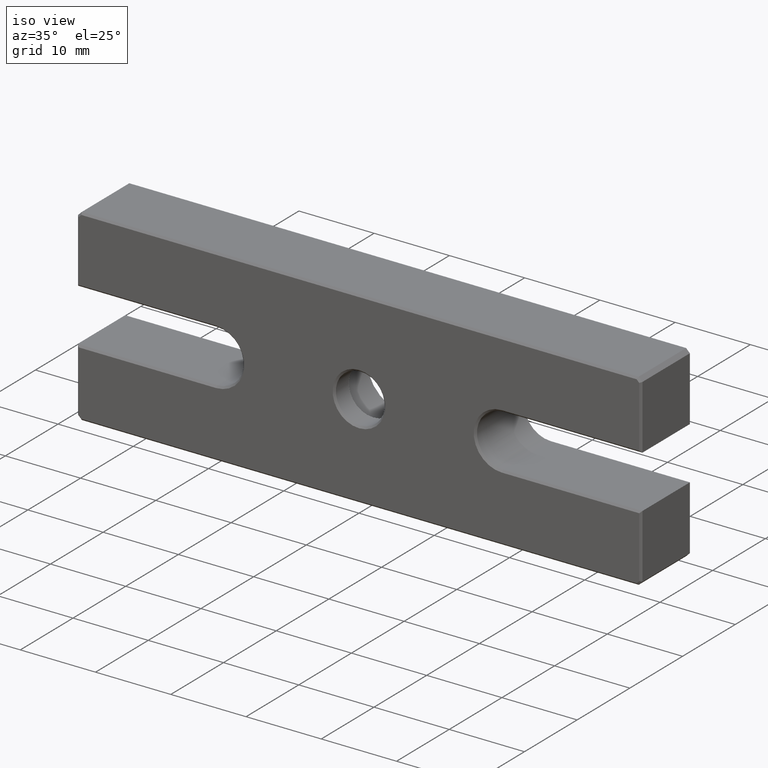
[diagram: clean part render]
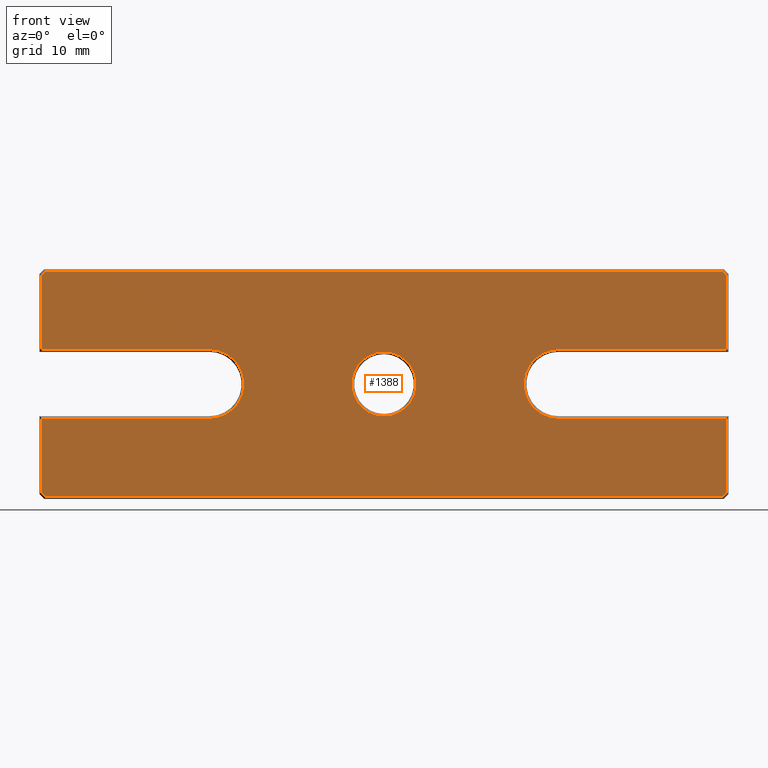
[diagram: tour spotlight — one face highlighted and labeled with its STEP entity id]
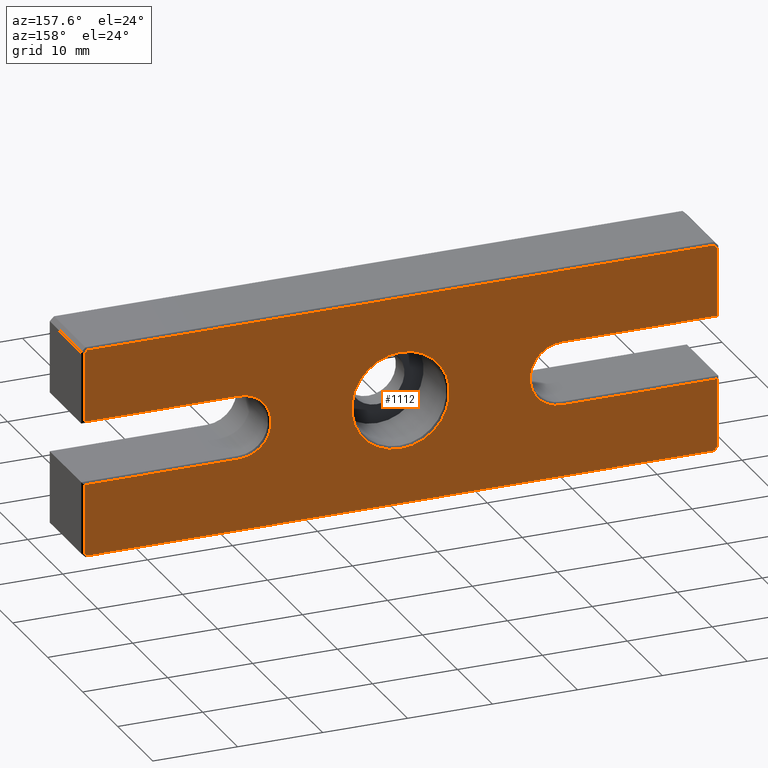
[diagram: tour spotlight — one face highlighted and labeled with its STEP entity id]
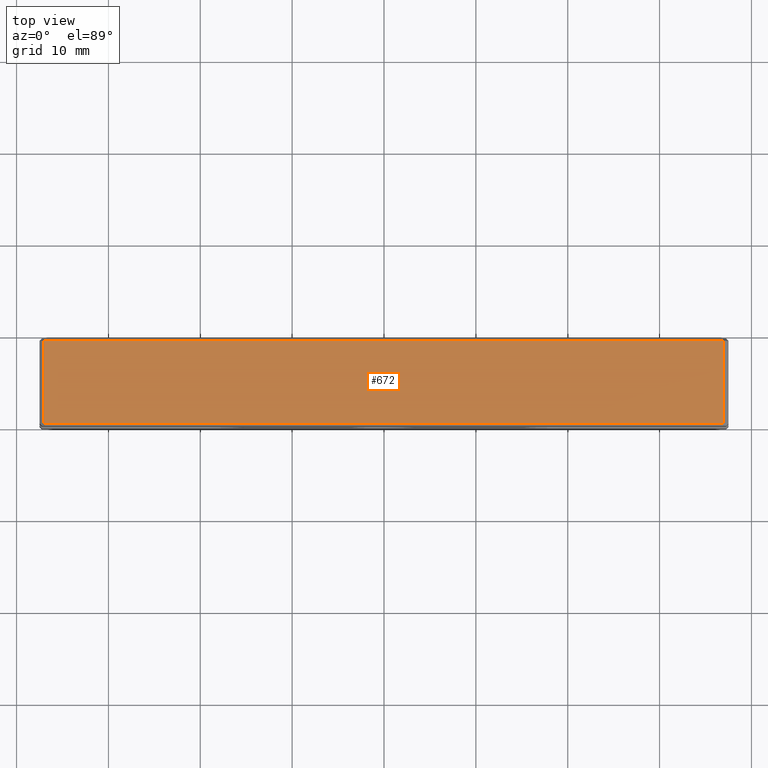
[diagram: tour spotlight — one face highlighted and labeled with its STEP entity id]
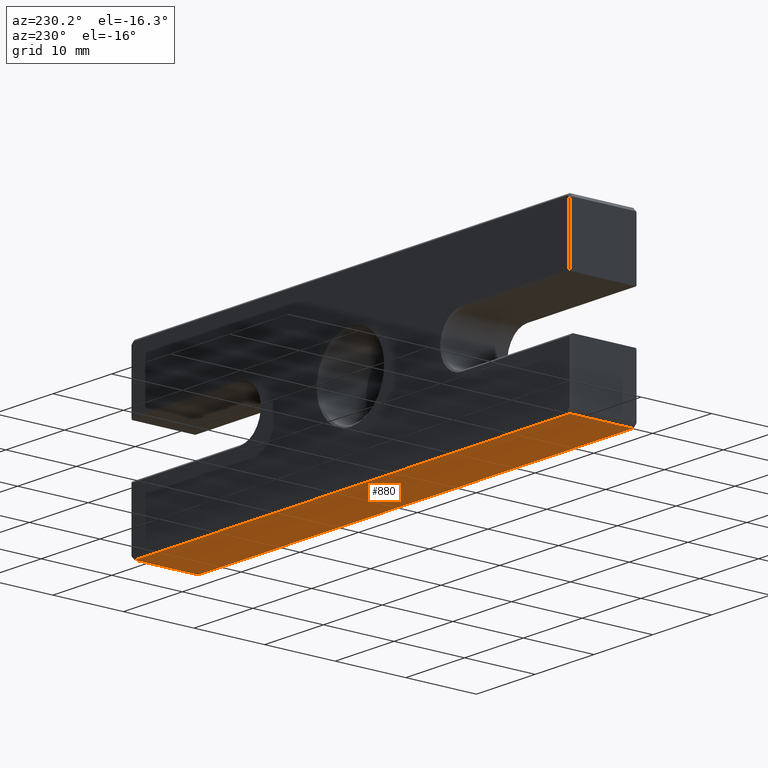
[diagram: tour spotlight — one face highlighted and labeled with its STEP entity id]
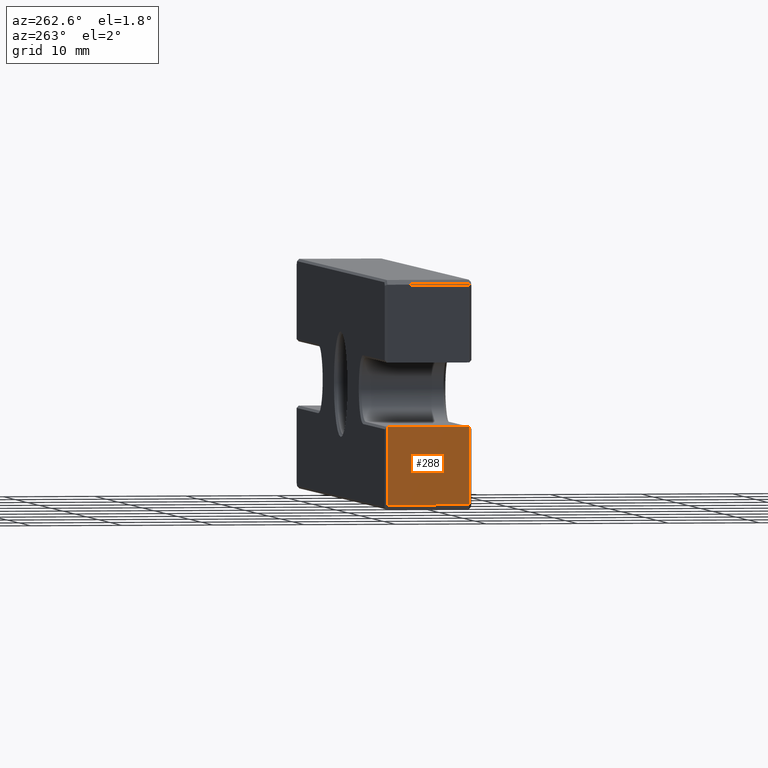
[diagram: tour spotlight — one face highlighted and labeled with its STEP entity id]
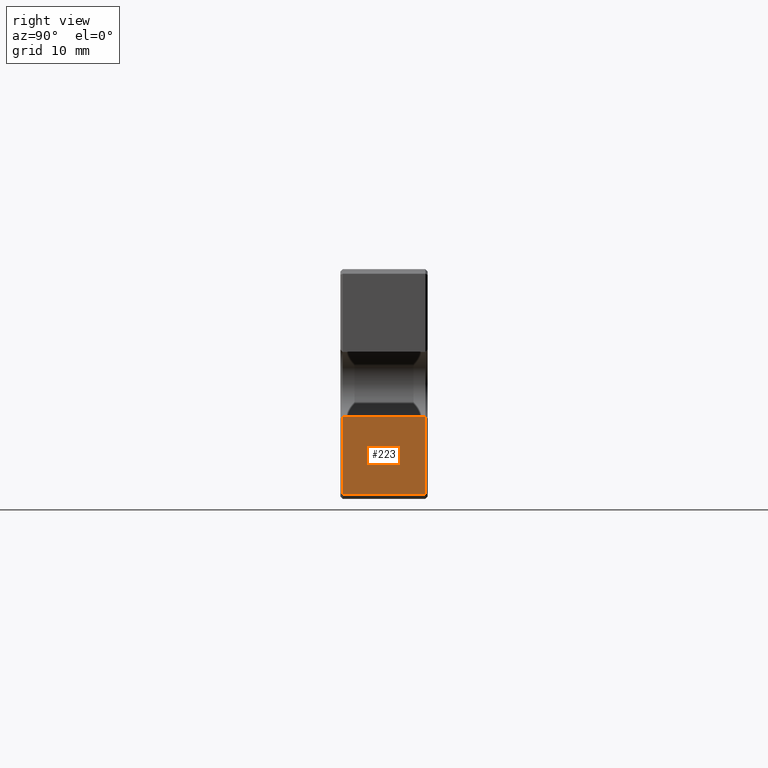
[diagram: tour spotlight — one face highlighted and labeled with its STEP entity id]
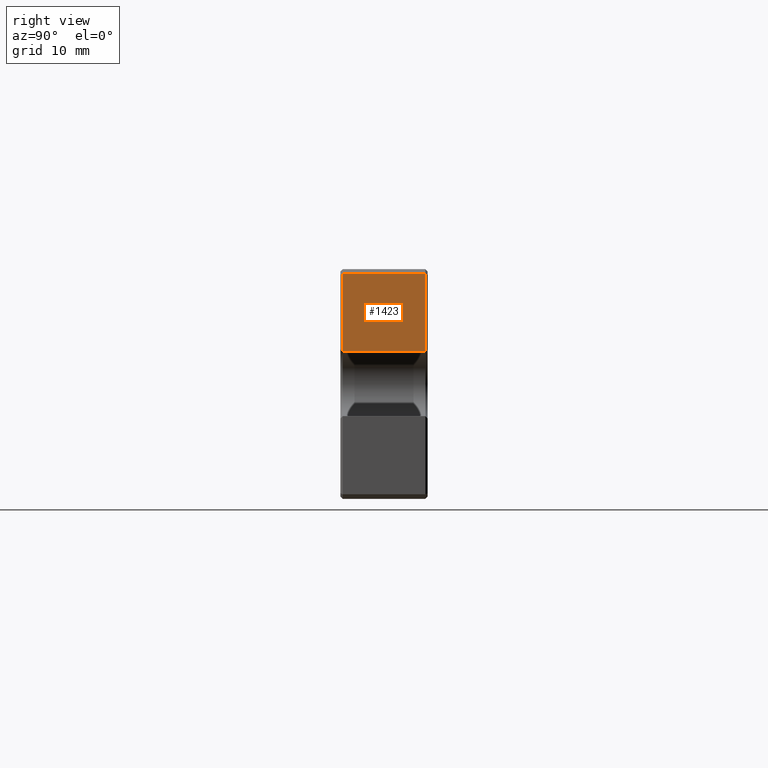
[diagram: tour spotlight — one face highlighted and labeled with its STEP entity id]
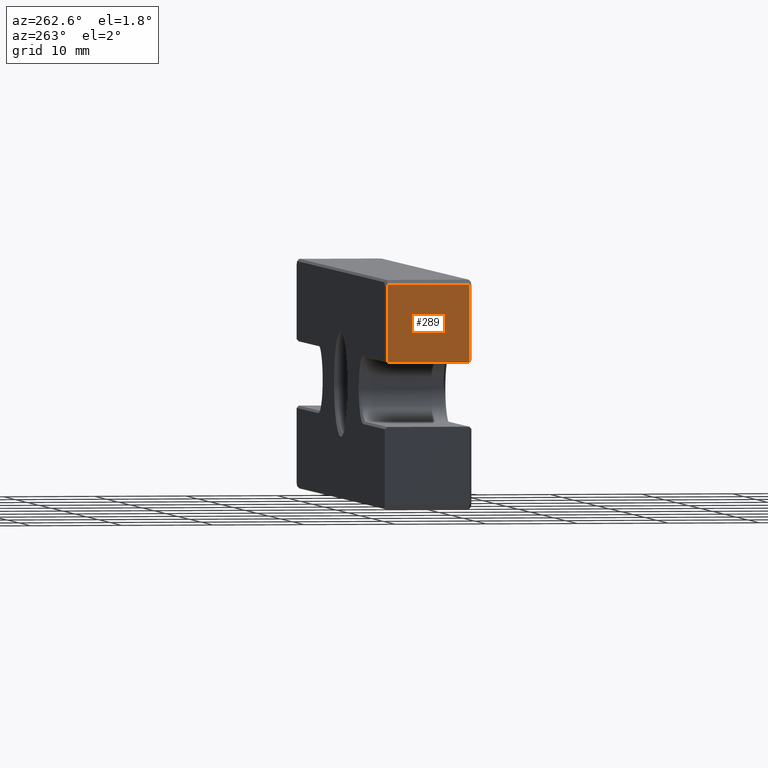
[diagram: tour spotlight — one face highlighted and labeled with its STEP entity id]
A machine part: a face-by-face anatomy tour. The part has 55 B-rep faces; the first image is the clean iso view, then the 8 largest visible faces are spotlighted one at a time (largest first), each with its STEP entity span.

Face 1 — front view, entity #1388. In plain terms, the highlighted planar face has unit normal (0, 1, -0).
Definition (entity closure, byte-faithful):
#18 = VERTEX_POINT ( 'NONE', #845 ) ;
#21 = PLANE ( 'NONE',  #238 ) ;
#34 = DIRECTION ( 'NONE',  ( 0.000000000000000000, 0.000000000000000000, 1.000000000000000000 ) ) ;
#48 = EDGE_LOOP ( 'NONE', ( #95 ) ) ;
#56 = VECTOR ( 'NONE', #1059, 1000.000000000000000 ) ;
#71 = EDGE_CURVE ( 'NONE', #669, #854, #1055, .T. ) ;
#79 = CARTESIAN_POINT ( 'NONE',  ( 19.00000000000000355, 0.000000000000000000, 3.750000000000000000 ) ) ;
#84 = VERTEX_POINT ( 'NONE', #699 ) ;
#86 = VERTEX_POINT ( 'NONE', #371 ) ;
#90 = VECTOR ( 'NONE', #919, 1000.000000000000000 ) ;
#95 = ORIENTED_EDGE ( 'NONE', *, *, #1502, .T. ) ;
#115 = DIRECTION ( 'NONE',  ( -2.775557561562891351E-16, 0.000000000000000000, 1.000000000000000000 ) ) ;
#126 = DIRECTION ( 'NONE',  ( 0.000000000000000000, 0.000000000000000000, 1.000000000000000000 ) ) ;
#135 = FACE_BOUND ( 'NONE', #48, .T. ) ;
#142 = CARTESIAN_POINT ( 'NONE',  ( 4.633870404759981403E-17, 0.000000000000000000, 3.749999999999988454 ) ) ;
#143 = LINE ( 'NONE', #1187, #412 ) ;
#161 = VERTEX_POINT ( 'NONE', #1459 ) ;
#162 = DIRECTION ( 'NONE',  ( 0.000000000000000000, 1.000000000000000000, -0.000000000000000000 ) ) ;
#172 = EDGE_CURVE ( 'NONE', #1295, #161, #520, .T. ) ;
#175 = VERTEX_POINT ( 'NONE', #1468 ) ;
#176 = VERTEX_POINT ( 'NONE', #385 ) ;
#184 = ORIENTED_EDGE ( 'NONE', *, *, #948, .T. ) ;
#216 = ORIENTED_EDGE ( 'NONE', *, *, #1133, .T. ) ;
#229 = CARTESIAN_POINT ( 'NONE',  ( 37.24999999999997158, 0.000000000000000000, 1.033895191682176239E-14 ) ) ;
#238 = AXIS2_PLACEMENT_3D ( 'NONE', #494, #963, #1429 ) ;
#240 = LINE ( 'NONE', #350, #802 ) ;
#256 = ORIENTED_EDGE ( 'NONE', *, *, #71, .T. ) ;
#286 = VECTOR ( 'NONE', #1248, 1000.000000000000000 ) ;
#292 = CARTESIAN_POINT ( 'NONE',  ( 37.32322330470335459, 0.000000000000000000, -11.82322330470334570 ) ) ;
#305 = VECTOR ( 'NONE', #856, 1000.000000000000114 ) ;
#342 = CARTESIAN_POINT ( 'NONE',  ( -37.24999999999997158, 0.000000000000000000, -11.89644660940673226 ) ) ;
#350 = CARTESIAN_POINT ( 'NONE',  ( 37.24999999999997158, 0.000000000000000000, 1.033895191682176239E-14 ) ) ;
#367 = VERTEX_POINT ( 'NONE', #1021 ) ;
#371 = CARTESIAN_POINT ( 'NONE',  ( -36.89644660940670917, 0.000000000000000000, -12.24999999999998757 ) ) ;
#378 = CARTESIAN_POINT ( 'NONE',  ( 5.510992715841790114E-17, 0.000000000000000000, -3.750000000000001332 ) ) ;
#385 = CARTESIAN_POINT ( 'NONE',  ( 37.24999999999997158, 0.000000000000000000, -3.750000000000000444 ) ) ;
#402 = DIRECTION ( 'NONE',  ( -2.775557561562891351E-16, 0.000000000000000000, -1.000000000000000000 ) ) ;
#411 = EDGE_CURVE ( 'NONE', #86, #367, #575, .T. ) ;
#412 = VECTOR ( 'NONE', #470, 1000.000000000000114 ) ;
#414 = EDGE_CURVE ( 'NONE', #949, #176, #1054, .T. ) ;
#417 = DIRECTION ( 'NONE',  ( 0.7071067811865524577, 0.000000000000000000, 0.7071067811865426878 ) ) ;
#433 = EDGE_CURVE ( 'NONE', #18, #1295, #462, .T. ) ;
#442 = LINE ( 'NONE', #677, #286 ) ;
#443 = ORIENTED_EDGE ( 'NONE', *, *, #1060, .T. ) ;
#448 = LINE ( 'NONE', #457, #90 ) ;
#457 = CARTESIAN_POINT ( 'NONE',  ( 0.000000000000000000, 0.000000000000000000, 12.24999999999998401 ) ) ;
#462 = LINE ( 'NONE', #1512, #1408 ) ;
#470 = DIRECTION ( 'NONE',  ( -0.7071067811865474617, 0.000000000000000000, -0.7071067811865474617 ) ) ;
#481 = ORIENTED_EDGE ( 'NONE', *, *, #1319, .T. ) ;
#487 = VECTOR ( 'NONE', #402, 1000.000000000000000 ) ;
#491 = ORIENTED_EDGE ( 'NONE', *, *, #411, .T. ) ;
#494 = CARTESIAN_POINT ( 'NONE',  ( 0.000000000000000000, 0.000000000000000000, 0.000000000000000000 ) ) ;
#502 = CIRCLE ( 'NONE', #1332, 3.750000000000000444 ) ;
#504 = EDGE_CURVE ( 'NONE', #1107, #756, #502, .T. ) ;
#520 = LINE ( 'NONE', #142, #577 ) ;
#531 = CARTESIAN_POINT ( 'NONE',  ( -37.24999999999997158, 0.000000000000000000, 1.033895191682176239E-14 ) ) ;
#533 = ORIENTED_EDGE ( 'NONE', *, *, #414, .T. ) ;
#556 = VECTOR ( 'NONE', #574, 999.9999999999998863 ) ;
#574 = DIRECTION ( 'NONE',  ( -0.7071067811865425767, 0.000000000000000000, 0.7071067811865525687 ) ) ;
#575 = LINE ( 'NONE', #1391, #56 ) ;
#577 = VECTOR ( 'NONE', #742, 1000.000000000000000 ) ;
#580 = CIRCLE ( 'NONE', #899, 3.500000000000010214 ) ;
#581 = ORIENTED_EDGE ( 'NONE', *, *, #433, .T. ) ;
#588 = EDGE_CURVE ( 'NONE', #1130, #86, #850, .T. ) ;
#593 = CARTESIAN_POINT ( 'NONE',  ( -37.24999999999997158, 0.000000000000000000, 3.749999999999989342 ) ) ;
#595 = VERTEX_POINT ( 'NONE', #617 ) ;
#606 = FACE_OUTER_BOUND ( 'NONE', #1393, .T. ) ;
#617 = CARTESIAN_POINT ( 'NONE',  ( 37.24999999999997158, 0.000000000000000000, 3.750000000000000000 ) ) ;
#619 = CARTESIAN_POINT ( 'NONE',  ( 37.24999999999997158, 0.000000000000000000, 11.89644660940671983 ) ) ;
#622 = VECTOR ( 'NONE', #836, 1000.000000000000000 ) ;
#634 = CARTESIAN_POINT ( 'NONE',  ( -36.82322330470334748, 0.000000000000000000, -12.32322330470335459 ) ) ;
#669 = VERTEX_POINT ( 'NONE', #1086 ) ;
#676 = ORIENTED_EDGE ( 'NONE', *, *, #1070, .T. ) ;
#677 = CARTESIAN_POINT ( 'NONE',  ( -5.510992715841787649E-17, 0.000000000000000000, 3.749999999999999556 ) ) ;
#689 = CARTESIAN_POINT ( 'NONE',  ( -37.24999999999997158, 0.000000000000000000, -3.749999999999989786 ) ) ;
#699 = CARTESIAN_POINT ( 'NONE',  ( -36.89644660940670207, 0.000000000000000000, 12.24999999999998401 ) ) ;
#707 = DIRECTION ( 'NONE',  ( 0.000000000000000000, 1.000000000000000000, -0.000000000000000000 ) ) ;
#716 = DIRECTION ( 'NONE',  ( -1.000000000000000000, 0.000000000000000000, 1.235698774602665477E-17 ) ) ;
#737 = ORIENTED_EDGE ( 'NONE', *, *, #1338, .T. ) ;
#742 = DIRECTION ( 'NONE',  ( 1.000000000000000000, 0.000000000000000000, -1.235698774602665477E-17 ) ) ;
#756 = VERTEX_POINT ( 'NONE', #79 ) ;
#794 = VERTEX_POINT ( 'NONE', #1120 ) ;
#802 = VECTOR ( 'NONE', #115, 1000.000000000000000 ) ;
#836 = DIRECTION ( 'NONE',  ( -2.775557561562891351E-16, 0.000000000000000000, 1.000000000000000000 ) ) ;
#845 = CARTESIAN_POINT ( 'NONE',  ( -37.24999999999996447, 0.000000000000000000, 11.89644660940672694 ) ) ;
#850 = LINE ( 'NONE', #634, #305 ) ;
#854 = VERTEX_POINT ( 'NONE', #689 ) ;
#856 = DIRECTION ( 'NONE',  ( 0.7071067811865474617, 0.000000000000000000, -0.7071067811865474617 ) ) ;
#875 = VECTOR ( 'NONE', #1199, 1000.000000000000000 ) ;
#884 = CARTESIAN_POINT ( 'NONE',  ( 0.000000000000000000, 0.000000000000000000, 0.000000000000000000 ) ) ;
#885 = ORIENTED_EDGE ( 'NONE', *, *, #1154, .T. ) ;
#886 = CARTESIAN_POINT ( 'NONE',  ( 19.00000000000000355, 0.000000000000000000, -3.750000000000000888 ) ) ;
#899 = AXIS2_PLACEMENT_3D ( 'NONE', #884, #1351, #34 ) ;
#919 = DIRECTION ( 'NONE',  ( -1.000000000000000000, 0.000000000000000000, 0.000000000000000000 ) ) ;
#926 = ORIENTED_EDGE ( 'NONE', *, *, #1517, .T. ) ;
#932 = DIRECTION ( 'NONE',  ( -2.775557561562891351E-16, 0.000000000000000000, -1.000000000000000000 ) ) ;
#948 = EDGE_CURVE ( 'NONE', #1479, #794, #1151, .T. ) ;
#949 = VERTEX_POINT ( 'NONE', #1298 ) ;
#963 = DIRECTION ( 'NONE',  ( 0.000000000000000000, 1.000000000000000000, -0.000000000000000000 ) ) ;
#1000 = LINE ( 'NONE', #531, #487 ) ;
#1021 = CARTESIAN_POINT ( 'NONE',  ( 36.89644660940670207, 0.000000000000000000, -12.24999999999998757 ) ) ;
#1046 = VECTOR ( 'NONE', #417, 1000.000000000000000 ) ;
#1054 = LINE ( 'NONE', #229, #622 ) ;
#1055 = LINE ( 'NONE', #1162, #1334 ) ;
#1059 = DIRECTION ( 'NONE',  ( 1.000000000000000000, 0.000000000000000000, 0.000000000000000000 ) ) ;
#1060 = EDGE_CURVE ( 'NONE', #161, #669, #1392, .T. ) ;
#1064 = ORIENTED_EDGE ( 'NONE', *, *, #172, .T. ) ;
#1070 = EDGE_CURVE ( 'NONE', #854, #1130, #1000, .T. ) ;
#1075 = CARTESIAN_POINT ( 'NONE',  ( 19.00000000000000355, 0.000000000000000000, -4.336808689942017736E-16 ) ) ;
#1086 = CARTESIAN_POINT ( 'NONE',  ( -19.00000000000000355, 0.000000000000000000, -3.749999999999989786 ) ) ;
#1107 = VERTEX_POINT ( 'NONE', #886 ) ;
#1120 = CARTESIAN_POINT ( 'NONE',  ( 36.89644660940670917, 0.000000000000000000, 12.24999999999998224 ) ) ;
#1130 = VERTEX_POINT ( 'NONE', #342 ) ;
#1133 = EDGE_CURVE ( 'NONE', #756, #595, #442, .T. ) ;
#1148 = ORIENTED_EDGE ( 'NONE', *, *, #504, .T. ) ;
#1151 = LINE ( 'NONE', #1176, #556 ) ;
#1154 = EDGE_CURVE ( 'NONE', #794, #84, #448, .T. ) ;
#1157 = ORIENTED_EDGE ( 'NONE', *, *, #1272, .T. ) ;
#1162 = CARTESIAN_POINT ( 'NONE',  ( -4.633870404759983251E-17, 0.000000000000000000, -3.749999999999990230 ) ) ;
#1173 = ORIENTED_EDGE ( 'NONE', *, *, #588, .T. ) ;
#1176 = CARTESIAN_POINT ( 'NONE',  ( 36.82322330470334037, 0.000000000000000000, 12.32322330470335459 ) ) ;
#1187 = CARTESIAN_POINT ( 'NONE',  ( -37.32322330470334037, 0.000000000000000000, 11.82322330470334926 ) ) ;
#1199 = DIRECTION ( 'NONE',  ( -1.000000000000000000, 0.000000000000000000, -1.469598057557810142E-17 ) ) ;
#1223 = DIRECTION ( 'NONE',  ( 0.000000000000000000, 0.000000000000000000, 1.000000000000000000 ) ) ;
#1232 = CARTESIAN_POINT ( 'NONE',  ( -19.00000000000000355, 0.000000000000000000, -4.336808689942017736E-16 ) ) ;
#1248 = DIRECTION ( 'NONE',  ( 1.000000000000000000, 0.000000000000000000, 1.469598057557810142E-17 ) ) ;
#1272 = EDGE_CURVE ( 'NONE', #84, #18, #143, .T. ) ;
#1295 = VERTEX_POINT ( 'NONE', #593 ) ;
#1298 = CARTESIAN_POINT ( 'NONE',  ( 37.24999999999997868, 0.000000000000000000, -11.89644660940672338 ) ) ;
#1319 = EDGE_CURVE ( 'NONE', #176, #1107, #1399, .T. ) ;
#1332 = AXIS2_PLACEMENT_3D ( 'NONE', #1075, #707, #126 ) ;
#1334 = VECTOR ( 'NONE', #716, 1000.000000000000000 ) ;
#1338 = EDGE_CURVE ( 'NONE', #595, #1479, #240, .T. ) ;
#1345 = LINE ( 'NONE', #292, #1046 ) ;
#1351 = DIRECTION ( 'NONE',  ( 0.000000000000000000, 1.000000000000000000, -0.000000000000000000 ) ) ;
#1388 = ADVANCED_FACE ( 'NONE', ( #135, #606 ), #21, .F. ) ;
#1391 = CARTESIAN_POINT ( 'NONE',  ( 0.000000000000000000, 0.000000000000000000, -12.24999999999998757 ) ) ;
#1392 = CIRCLE ( 'NONE', #1489, 3.749999999999989342 ) ;
#1393 = EDGE_LOOP ( 'NONE', ( #1148, #216, #737, #184, #885, #1157, #581, #1064, #443, #256, #676, #1173, #491, #926, #533, #481 ) ) ;
#1399 = LINE ( 'NONE', #378, #875 ) ;
#1408 = VECTOR ( 'NONE', #932, 1000.000000000000000 ) ;
#1429 = DIRECTION ( 'NONE',  ( 0.000000000000000000, 0.000000000000000000, 1.000000000000000000 ) ) ;
#1459 = CARTESIAN_POINT ( 'NONE',  ( -19.00000000000000355, 0.000000000000000000, 3.749999999999988898 ) ) ;
#1468 = CARTESIAN_POINT ( 'NONE',  ( 0.000000000000000000, 0.000000000000000000, 3.500000000000010214 ) ) ;
#1479 = VERTEX_POINT ( 'NONE', #619 ) ;
#1489 = AXIS2_PLACEMENT_3D ( 'NONE', #1232, #162, #1223 ) ;
#1502 = EDGE_CURVE ( 'NONE', #175, #175, #580, .T. ) ;
#1512 = CARTESIAN_POINT ( 'NONE',  ( -37.24999999999997158, 0.000000000000000000, 1.033895191682176239E-14 ) ) ;
#1517 = EDGE_CURVE ( 'NONE', #367, #949, #1345, .T. ) ;

Face 2 — auxiliary view, entity #1112. In plain terms, the highlighted planar face has unit normal (0, 1, -0).
Definition (entity closure, byte-faithful):
#17 = VERTEX_POINT ( 'NONE', #1521 ) ;
#39 = ORIENTED_EDGE ( 'NONE', *, *, #701, .T. ) ;
#43 = CARTESIAN_POINT ( 'NONE',  ( 0.000000000000000000, 9.500000000000000000, 5.750000000000018652 ) ) ;
#53 = LINE ( 'NONE', #1478, #136 ) ;
#66 = DIRECTION ( 'NONE',  ( 1.000000000000000000, 0.000000000000000000, 0.000000000000000000 ) ) ;
#70 = DIRECTION ( 'NONE',  ( 1.000000000000000000, 0.000000000000000000, 1.469598057557810142E-17 ) ) ;
#78 = ORIENTED_EDGE ( 'NONE', *, *, #1424, .T. ) ;
#85 = CARTESIAN_POINT ( 'NONE',  ( 37.24999999999997868, 9.500000000000000000, 11.89644660940673582 ) ) ;
#92 = EDGE_CURVE ( 'NONE', #940, #93, #1170, .T. ) ;
#93 = VERTEX_POINT ( 'NONE', #354 ) ;
#97 = DIRECTION ( 'NONE',  ( 0.000000000000000000, 0.000000000000000000, 1.000000000000000000 ) ) ;
#101 = LINE ( 'NONE', #1418, #113 ) ;
#104 = CARTESIAN_POINT ( 'NONE',  ( -37.24999999999999289, 9.500000000000000000, -3.749999999999994671 ) ) ;
#112 = VECTOR ( 'NONE', #1337, 1000.000000000000000 ) ;
#113 = VECTOR ( 'NONE', #803, 1000.000000000000000 ) ;
#117 = ORIENTED_EDGE ( 'NONE', *, *, #337, .T. ) ;
#121 = DIRECTION ( 'NONE',  ( 2.775557561562891351E-16, 0.000000000000000000, -1.000000000000000000 ) ) ;
#136 = VECTOR ( 'NONE', #538, 1000.000000000000000 ) ;
#154 = CIRCLE ( 'NONE', #549, 5.750000000000018652 ) ;
#164 = ORIENTED_EDGE ( 'NONE', *, *, #92, .T. ) ;
#169 = LINE ( 'NONE', #1007, #950 ) ;
#170 = ORIENTED_EDGE ( 'NONE', *, *, #797, .T. ) ;
#186 = CARTESIAN_POINT ( 'NONE',  ( -36.89644660940670917, 9.500000000000000000, 12.24999999999999645 ) ) ;
#188 = VECTOR ( 'NONE', #1077, 1000.000000000000000 ) ;
#191 = CARTESIAN_POINT ( 'NONE',  ( -24.57322330470335459, 9.500000000000000000, 24.57322330470335459 ) ) ;
#195 = EDGE_CURVE ( 'NONE', #822, #495, #649, .T. ) ;
#201 = PLANE ( 'NONE',  #654 ) ;
#227 = VERTEX_POINT ( 'NONE', #291 ) ;
#228 = DIRECTION ( 'NONE',  ( -0.7071067811865474617, 0.000000000000000000, 0.7071067811865474617 ) ) ;
#244 = DIRECTION ( 'NONE',  ( -1.000000000000000000, 0.000000000000000000, 1.235698774602665477E-17 ) ) ;
#255 = LINE ( 'NONE', #1283, #188 ) ;
#279 = VECTOR ( 'NONE', #819, 1000.000000000000000 ) ;
#291 = CARTESIAN_POINT ( 'NONE',  ( -37.24999999999998579, 9.500000000000000000, 11.89644660940672338 ) ) ;
#298 = CARTESIAN_POINT ( 'NONE',  ( 0.000000000000000000, 9.500000000000000000, 0.000000000000000000 ) ) ;
#300 = EDGE_CURVE ( 'NONE', #227, #986, #1374, .T. ) ;
#302 = FACE_BOUND ( 'NONE', #1037, .T. ) ;
#315 = VECTOR ( 'NONE', #1125, 999.9999999999998863 ) ;
#333 = DIRECTION ( 'NONE',  ( 0.000000000000000000, 1.000000000000000000, -0.000000000000000000 ) ) ;
#337 = EDGE_CURVE ( 'NONE', #1098, #1098, #154, .T. ) ;
#338 = VECTOR ( 'NONE', #66, 1000.000000000000000 ) ;
#354 = CARTESIAN_POINT ( 'NONE',  ( 37.24999999999998579, 9.500000000000000000, -11.89644660940673404 ) ) ;
#375 = ORIENTED_EDGE ( 'NONE', *, *, #1361, .T. ) ;
#394 = ORIENTED_EDGE ( 'NONE', *, *, #195, .T. ) ;
#410 = VECTOR ( 'NONE', #244, 1000.000000000000000 ) ;
#438 = CARTESIAN_POINT ( 'NONE',  ( 36.99999999999999289, 9.500000000000000000, 12.24999999999999822 ) ) ;
#466 = LINE ( 'NONE', #1058, #1440 ) ;
#479 = VECTOR ( 'NONE', #775, 1000.000000000000114 ) ;
#495 = VERTEX_POINT ( 'NONE', #816 ) ;
#511 = ORIENTED_EDGE ( 'NONE', *, *, #957, .T. ) ;
#524 = CARTESIAN_POINT ( 'NONE',  ( 19.00000000000000355, 9.500000000000000000, 3.750000000000000000 ) ) ;
#538 = DIRECTION ( 'NONE',  ( 2.775557561562891351E-16, 0.000000000000000000, 1.000000000000000000 ) ) ;
#539 = VERTEX_POINT ( 'NONE', #1219 ) ;
#546 = FACE_OUTER_BOUND ( 'NONE', #814, .T. ) ;
#547 = VERTEX_POINT ( 'NONE', #1442 ) ;
#549 = AXIS2_PLACEMENT_3D ( 'NONE', #298, #559, #97 ) ;
#558 = CARTESIAN_POINT ( 'NONE',  ( -19.00000000000000355, 9.500000000000000000, -3.749999999999993339 ) ) ;
#559 = DIRECTION ( 'NONE',  ( -0.000000000000000000, -1.000000000000000000, 0.000000000000000000 ) ) ;
#563 = CARTESIAN_POINT ( 'NONE',  ( 36.89644660940671628, 9.500000000000000000, 12.24999999999999822 ) ) ;
#565 = CARTESIAN_POINT ( 'NONE',  ( 37.24999999999998579, 9.500000000000000000, -3.750000000000001776 ) ) ;
#594 = VERTEX_POINT ( 'NONE', #1110 ) ;
#596 = LINE ( 'NONE', #1304, #929 ) ;
#628 = VECTOR ( 'NONE', #121, 1000.000000000000000 ) ;
#630 = ORIENTED_EDGE ( 'NONE', *, *, #979, .T. ) ;
#632 = VERTEX_POINT ( 'NONE', #1102 ) ;
#649 = CIRCLE ( 'NONE', #1409, 3.749999999999992895 ) ;
#654 = AXIS2_PLACEMENT_3D ( 'NONE', #1371, #333, #1015 ) ;
#659 = DIRECTION ( 'NONE',  ( 1.000000000000000000, 0.000000000000000000, -1.235698774602665477E-17 ) ) ;
#664 = LINE ( 'NONE', #671, #1051 ) ;
#671 = CARTESIAN_POINT ( 'NONE',  ( -19.00000000000000355, 9.500000000000000000, -3.749999999999993339 ) ) ;
#695 = LINE ( 'NONE', #1167, #410 ) ;
#701 = EDGE_CURVE ( 'NONE', #986, #1126, #1473, .T. ) ;
#709 = LINE ( 'NONE', #1179, #628 ) ;
#774 = AXIS2_PLACEMENT_3D ( 'NONE', #876, #978, #1335 ) ;
#775 = DIRECTION ( 'NONE',  ( 0.7071067811865474617, 0.000000000000000000, 0.7071067811865474617 ) ) ;
#797 = EDGE_CURVE ( 'NONE', #1139, #822, #664, .T. ) ;
#803 = DIRECTION ( 'NONE',  ( -0.7071067811865524577, 0.000000000000000000, -0.7071067811865426878 ) ) ;
#814 = EDGE_LOOP ( 'NONE', ( #375, #1463, #78, #839, #164, #920, #1322, #1141, #834, #170, #394, #511, #964, #860, #39, #630 ) ) ;
#816 = CARTESIAN_POINT ( 'NONE',  ( -19.00000000000000355, 9.500000000000000000, 3.749999999999992450 ) ) ;
#819 = DIRECTION ( 'NONE',  ( 2.775557561562891351E-16, 0.000000000000000000, -1.000000000000000000 ) ) ;
#821 = CIRCLE ( 'NONE', #774, 3.750000000000000444 ) ;
#822 = VERTEX_POINT ( 'NONE', #558 ) ;
#833 = EDGE_CURVE ( 'NONE', #1215, #547, #466, .T. ) ;
#834 = ORIENTED_EDGE ( 'NONE', *, *, #1039, .T. ) ;
#835 = DIRECTION ( 'NONE',  ( -1.000000000000000000, 0.000000000000000000, 0.000000000000000000 ) ) ;
#839 = ORIENTED_EDGE ( 'NONE', *, *, #1024, .T. ) ;
#860 = ORIENTED_EDGE ( 'NONE', *, *, #300, .T. ) ;
#876 = CARTESIAN_POINT ( 'NONE',  ( 19.00000000000000355, 9.500000000000000000, -4.336808689942017736E-16 ) ) ;
#878 = CARTESIAN_POINT ( 'NONE',  ( 24.57322330470361749, 9.500000000000000000, 24.57322330470327643 ) ) ;
#889 = EDGE_CURVE ( 'NONE', #93, #1215, #101, .T. ) ;
#905 = CARTESIAN_POINT ( 'NONE',  ( 36.89644660940670917, 9.500000000000000000, -12.25000000000000178 ) ) ;
#909 = EDGE_CURVE ( 'NONE', #547, #539, #596, .T. ) ;
#920 = ORIENTED_EDGE ( 'NONE', *, *, #889, .T. ) ;
#929 = VECTOR ( 'NONE', #228, 1000.000000000000114 ) ;
#937 = CARTESIAN_POINT ( 'NONE',  ( 37.24999999999998579, 9.500000000000000000, -11.99999999999999467 ) ) ;
#940 = VERTEX_POINT ( 'NONE', #565 ) ;
#950 = VECTOR ( 'NONE', #70, 1000.000000000000000 ) ;
#957 = EDGE_CURVE ( 'NONE', #495, #594, #695, .T. ) ;
#964 = ORIENTED_EDGE ( 'NONE', *, *, #1356, .T. ) ;
#978 = DIRECTION ( 'NONE',  ( -0.000000000000000000, -1.000000000000000000, 0.000000000000000000 ) ) ;
#979 = EDGE_CURVE ( 'NONE', #1126, #1201, #1518, .T. ) ;
#986 = VERTEX_POINT ( 'NONE', #186 ) ;
#990 = DIRECTION ( 'NONE',  ( 0.000000000000000000, 0.000000000000000000, 1.000000000000000000 ) ) ;
#993 = VERTEX_POINT ( 'NONE', #1353 ) ;
#1007 = CARTESIAN_POINT ( 'NONE',  ( 37.24999999999998579, 9.500000000000000000, -3.750000000000000888 ) ) ;
#1015 = DIRECTION ( 'NONE',  ( 0.000000000000000000, 0.000000000000000000, 1.000000000000000000 ) ) ;
#1024 = EDGE_CURVE ( 'NONE', #993, #940, #169, .T. ) ;
#1037 = EDGE_LOOP ( 'NONE', ( #117 ) ) ;
#1039 = EDGE_CURVE ( 'NONE', #539, #1139, #53, .T. ) ;
#1051 = VECTOR ( 'NONE', #659, 1000.000000000000000 ) ;
#1058 = CARTESIAN_POINT ( 'NONE',  ( -37.00000000000000000, 9.500000000000000000, -12.25000000000000178 ) ) ;
#1077 = DIRECTION ( 'NONE',  ( 2.775557561562891351E-16, 0.000000000000000000, 1.000000000000000000 ) ) ;
#1085 = EDGE_CURVE ( 'NONE', #17, #632, #1117, .T. ) ;
#1088 = CARTESIAN_POINT ( 'NONE',  ( -19.00000000000000355, 9.500000000000000000, -4.336808689942017736E-16 ) ) ;
#1098 = VERTEX_POINT ( 'NONE', #43 ) ;
#1102 = CARTESIAN_POINT ( 'NONE',  ( 19.00000000000000355, 9.500000000000000000, 3.750000000000000000 ) ) ;
#1110 = CARTESIAN_POINT ( 'NONE',  ( -37.24999999999998579, 9.500000000000000000, 3.749999999999992895 ) ) ;
#1112 = ADVANCED_FACE ( 'NONE', ( #302, #546 ), #201, .T. ) ;
#1117 = LINE ( 'NONE', #524, #112 ) ;
#1125 = DIRECTION ( 'NONE',  ( 0.7071067811865425767, 0.000000000000000000, -0.7071067811865525687 ) ) ;
#1126 = VERTEX_POINT ( 'NONE', #563 ) ;
#1139 = VERTEX_POINT ( 'NONE', #104 ) ;
#1141 = ORIENTED_EDGE ( 'NONE', *, *, #909, .T. ) ;
#1167 = CARTESIAN_POINT ( 'NONE',  ( -37.24999999999998579, 9.500000000000000000, 3.749999999999992450 ) ) ;
#1170 = LINE ( 'NONE', #937, #279 ) ;
#1179 = CARTESIAN_POINT ( 'NONE',  ( 37.24999999999998579, 9.500000000000000000, -11.99999999999999467 ) ) ;
#1201 = VERTEX_POINT ( 'NONE', #85 ) ;
#1215 = VERTEX_POINT ( 'NONE', #905 ) ;
#1219 = CARTESIAN_POINT ( 'NONE',  ( -37.24999999999999289, 9.500000000000000000, -11.89644660940673404 ) ) ;
#1283 = CARTESIAN_POINT ( 'NONE',  ( -37.24999999999998579, 9.500000000000000000, 11.99999999999999822 ) ) ;
#1304 = CARTESIAN_POINT ( 'NONE',  ( -24.57322330470336169, 9.500000000000000000, -24.57322330470336169 ) ) ;
#1322 = ORIENTED_EDGE ( 'NONE', *, *, #833, .T. ) ;
#1335 = DIRECTION ( 'NONE',  ( 0.000000000000000000, 0.000000000000000000, 1.000000000000000000 ) ) ;
#1337 = DIRECTION ( 'NONE',  ( -1.000000000000000000, 0.000000000000000000, -1.469598057557810142E-17 ) ) ;
#1353 = CARTESIAN_POINT ( 'NONE',  ( 19.00000000000000355, 9.500000000000000000, -3.750000000000001332 ) ) ;
#1356 = EDGE_CURVE ( 'NONE', #594, #227, #255, .T. ) ;
#1361 = EDGE_CURVE ( 'NONE', #1201, #17, #709, .T. ) ;
#1371 = CARTESIAN_POINT ( 'NONE',  ( 0.000000000000000000, 9.500000000000000000, 0.000000000000000000 ) ) ;
#1374 = LINE ( 'NONE', #191, #479 ) ;
#1409 = AXIS2_PLACEMENT_3D ( 'NONE', #1088, #1435, #990 ) ;
#1418 = CARTESIAN_POINT ( 'NONE',  ( 24.57322330470310234, 9.500000000000000000, -24.57322330470343985 ) ) ;
#1424 = EDGE_CURVE ( 'NONE', #632, #993, #821, .T. ) ;
#1435 = DIRECTION ( 'NONE',  ( -0.000000000000000000, -1.000000000000000000, 0.000000000000000000 ) ) ;
#1440 = VECTOR ( 'NONE', #835, 1000.000000000000000 ) ;
#1442 = CARTESIAN_POINT ( 'NONE',  ( -36.89644660940672338, 9.500000000000000000, -12.25000000000000178 ) ) ;
#1463 = ORIENTED_EDGE ( 'NONE', *, *, #1085, .T. ) ;
#1473 = LINE ( 'NONE', #438, #338 ) ;
#1478 = CARTESIAN_POINT ( 'NONE',  ( -37.24999999999998579, 9.500000000000000000, 11.99999999999999822 ) ) ;
#1518 = LINE ( 'NONE', #878, #315 ) ;
#1521 = CARTESIAN_POINT ( 'NONE',  ( 37.24999999999997868, 9.500000000000000000, 3.750000000000001776 ) ) ;

Face 3 — top view, entity #672. In plain terms, the highlighted planar face has unit normal (0, 0, -1).
Definition (entity closure, byte-faithful):
#49 = DIRECTION ( 'NONE',  ( 0.000000000000000000, 0.000000000000000000, -1.000000000000000000 ) ) ;
#63 = EDGE_CURVE ( 'NONE', #390, #871, #463, .T. ) ;
#73 = DIRECTION ( 'NONE',  ( 0.000000000000000000, -1.000000000000000000, 0.000000000000000000 ) ) ;
#132 = DIRECTION ( 'NONE',  ( 1.000000000000000000, 0.000000000000000000, 0.000000000000000000 ) ) ;
#144 = ORIENTED_EDGE ( 'NONE', *, *, #764, .T. ) ;
#245 = CARTESIAN_POINT ( 'NONE',  ( -36.99999999999999289, 0.2500000000000071609, 12.49999999999999822 ) ) ;
#321 = VERTEX_POINT ( 'NONE', #683 ) ;
#390 = VERTEX_POINT ( 'NONE', #1145 ) ;
#391 = FACE_OUTER_BOUND ( 'NONE', #1109, .T. ) ;
#463 = LINE ( 'NONE', #692, #922 ) ;
#475 = EDGE_CURVE ( 'NONE', #518, #390, #602, .T. ) ;
#478 = VECTOR ( 'NONE', #132, 1000.000000000000000 ) ;
#518 = VERTEX_POINT ( 'NONE', #245 ) ;
#519 = DIRECTION ( 'NONE',  ( -1.000000000000000000, 0.000000000000000000, -0.000000000000000000 ) ) ;
#602 = LINE ( 'NONE', #809, #478 ) ;
#620 = ORIENTED_EDGE ( 'NONE', *, *, #1293, .T. ) ;
#672 = ADVANCED_FACE ( 'NONE', ( #391 ), #1449, .F. ) ;
#683 = CARTESIAN_POINT ( 'NONE',  ( -36.99999999999999289, 9.250000000000000000, 12.49999999999999822 ) ) ;
#692 = CARTESIAN_POINT ( 'NONE',  ( 36.99999999999999289, 9.500000000000000000, 12.49999999999999822 ) ) ;
#718 = ORIENTED_EDGE ( 'NONE', *, *, #63, .T. ) ;
#726 = ORIENTED_EDGE ( 'NONE', *, *, #475, .T. ) ;
#746 = AXIS2_PLACEMENT_3D ( 'NONE', #1324, #49, #519 ) ;
#764 = EDGE_CURVE ( 'NONE', #321, #518, #882, .T. ) ;
#809 = CARTESIAN_POINT ( 'NONE',  ( -37.49999999999999289, 0.2500000000000071609, 12.49999999999999822 ) ) ;
#838 = CARTESIAN_POINT ( 'NONE',  ( -36.99999999999999289, 9.250000000000000000, 12.49999999999999822 ) ) ;
#871 = VERTEX_POINT ( 'NONE', #941 ) ;
#882 = LINE ( 'NONE', #898, #1023 ) ;
#898 = CARTESIAN_POINT ( 'NONE',  ( -36.99999999999999289, 9.500000000000000000, 12.49999999999999822 ) ) ;
#922 = VECTOR ( 'NONE', #1186, 1000.000000000000000 ) ;
#938 = DIRECTION ( 'NONE',  ( -1.000000000000000000, 0.000000000000000000, 0.000000000000000000 ) ) ;
#941 = CARTESIAN_POINT ( 'NONE',  ( 36.99999999999999289, 9.250000000000000000, 12.49999999999999822 ) ) ;
#1023 = VECTOR ( 'NONE', #73, 1000.000000000000000 ) ;
#1069 = LINE ( 'NONE', #838, #1294 ) ;
#1109 = EDGE_LOOP ( 'NONE', ( #144, #726, #718, #620 ) ) ;
#1145 = CARTESIAN_POINT ( 'NONE',  ( 36.99999999999999289, 0.2500000000000054401, 12.49999999999999822 ) ) ;
#1186 = DIRECTION ( 'NONE',  ( 0.000000000000000000, 1.000000000000000000, 0.000000000000000000 ) ) ;
#1293 = EDGE_CURVE ( 'NONE', #871, #321, #1069, .T. ) ;
#1294 = VECTOR ( 'NONE', #938, 1000.000000000000000 ) ;
#1324 = CARTESIAN_POINT ( 'NONE',  ( -37.49999999999999289, 9.500000000000000000, 12.49999999999999822 ) ) ;
#1449 = PLANE ( 'NONE',  #746 ) ;

Face 4 — auxiliary view, entity #880. In plain terms, the highlighted planar face has unit normal (0, 0, 1).
Definition (entity closure, byte-faithful):
#42 = DIRECTION ( 'NONE',  ( 1.000000000000000000, 0.000000000000000000, 0.000000000000000000 ) ) ;
#60 = EDGE_CURVE ( 'NONE', #351, #877, #1282, .T. ) ;
#120 = DIRECTION ( 'NONE',  ( -0.000000000000000000, 1.000000000000000000, 0.000000000000000000 ) ) ;
#141 = DIRECTION ( 'NONE',  ( -1.000000000000000000, 0.000000000000000000, 0.000000000000000000 ) ) ;
#156 = EDGE_CURVE ( 'NONE', #877, #224, #1111, .T. ) ;
#181 = CARTESIAN_POINT ( 'NONE',  ( -37.00000000000000000, 0.2500000000000071609, -12.50000000000000178 ) ) ;
#224 = VERTEX_POINT ( 'NONE', #1344 ) ;
#269 = ORIENTED_EDGE ( 'NONE', *, *, #60, .T. ) ;
#306 = VECTOR ( 'NONE', #42, 1000.000000000000000 ) ;
#351 = VERTEX_POINT ( 'NONE', #181 ) ;
#352 = CARTESIAN_POINT ( 'NONE',  ( 36.99999999999998579, 9.500000000000000000, -12.50000000000000178 ) ) ;
#452 = DIRECTION ( 'NONE',  ( 0.000000000000000000, 0.000000000000000000, 1.000000000000000000 ) ) ;
#460 = CARTESIAN_POINT ( 'NONE',  ( -37.00000000000000000, 9.250000000000000000, -12.50000000000000178 ) ) ;
#461 = VECTOR ( 'NONE', #1288, 1000.000000000000000 ) ;
#613 = EDGE_CURVE ( 'NONE', #1027, #351, #1196, .T. ) ;
#618 = CARTESIAN_POINT ( 'NONE',  ( 36.99999999999998579, 9.250000000000000000, -12.50000000000000178 ) ) ;
#757 = CARTESIAN_POINT ( 'NONE',  ( -37.50000000000000000, 0.2500000000000071609, -12.50000000000000178 ) ) ;
#781 = ORIENTED_EDGE ( 'NONE', *, *, #156, .T. ) ;
#815 = DIRECTION ( 'NONE',  ( 1.000000000000000000, 0.000000000000000000, -0.000000000000000000 ) ) ;
#877 = VERTEX_POINT ( 'NONE', #460 ) ;
#880 = ADVANCED_FACE ( 'NONE', ( #953 ), #931, .F. ) ;
#896 = VECTOR ( 'NONE', #141, 1000.000000000000000 ) ;
#923 = LINE ( 'NONE', #352, #461 ) ;
#930 = EDGE_CURVE ( 'NONE', #224, #1027, #923, .T. ) ;
#931 = PLANE ( 'NONE',  #997 ) ;
#935 = CARTESIAN_POINT ( 'NONE',  ( -37.50000000000000000, 9.500000000000000000, -12.50000000000000178 ) ) ;
#951 = ORIENTED_EDGE ( 'NONE', *, *, #613, .T. ) ;
#953 = FACE_OUTER_BOUND ( 'NONE', #1180, .T. ) ;
#997 = AXIS2_PLACEMENT_3D ( 'NONE', #935, #452, #815 ) ;
#1027 = VERTEX_POINT ( 'NONE', #1470 ) ;
#1076 = CARTESIAN_POINT ( 'NONE',  ( -37.00000000000000000, 9.500000000000000000, -12.50000000000000178 ) ) ;
#1111 = LINE ( 'NONE', #618, #306 ) ;
#1180 = EDGE_LOOP ( 'NONE', ( #1395, #951, #269, #781 ) ) ;
#1196 = LINE ( 'NONE', #757, #896 ) ;
#1282 = LINE ( 'NONE', #1076, #1509 ) ;
#1288 = DIRECTION ( 'NONE',  ( 0.000000000000000000, -1.000000000000000000, 0.000000000000000000 ) ) ;
#1344 = CARTESIAN_POINT ( 'NONE',  ( 36.99999999999998579, 9.250000000000000000, -12.50000000000000178 ) ) ;
#1395 = ORIENTED_EDGE ( 'NONE', *, *, #930, .T. ) ;
#1470 = CARTESIAN_POINT ( 'NONE',  ( 36.99999999999998579, 0.2500000000000071609, -12.50000000000000178 ) ) ;
#1509 = VECTOR ( 'NONE', #120, 1000.000000000000000 ) ;

Face 5 — auxiliary view, entity #288. In plain terms, the highlighted planar face has unit normal (1, 0, -0).
Definition (entity closure, byte-faithful):
#3 = CARTESIAN_POINT ( 'NONE',  ( -37.50000000000000000, 0.2500000000000071609, -12.00000000000000178 ) ) ;
#7 = VECTOR ( 'NONE', #353, 1000.000000000000000 ) ;
#62 = DIRECTION ( 'NONE',  ( -2.775557561562891351E-16, -0.000000000000000000, -1.000000000000000000 ) ) ;
#180 = AXIS2_PLACEMENT_3D ( 'NONE', #1029, #1235, #1036 ) ;
#202 = VERTEX_POINT ( 'NONE', #1081 ) ;
#237 = DIRECTION ( 'NONE',  ( 2.775557561562891351E-16, 0.000000000000000000, 1.000000000000000000 ) ) ;
#276 = ORIENTED_EDGE ( 'NONE', *, *, #569, .T. ) ;
#288 = ADVANCED_FACE ( 'NONE', ( #1265 ), #567, .F. ) ;
#339 = CARTESIAN_POINT ( 'NONE',  ( -37.50000000000000000, 0.2500000000000071609, -12.50000000000000178 ) ) ;
#353 = DIRECTION ( 'NONE',  ( 0.000000000000000000, 1.000000000000000000, 0.000000000000000000 ) ) ;
#434 = VERTEX_POINT ( 'NONE', #3 ) ;
#480 = EDGE_CURVE ( 'NONE', #1231, #202, #1402, .T. ) ;
#497 = EDGE_CURVE ( 'NONE', #434, #1231, #942, .T. ) ;
#564 = ORIENTED_EDGE ( 'NONE', *, *, #497, .T. ) ;
#567 = PLANE ( 'NONE',  #180 ) ;
#569 = EDGE_CURVE ( 'NONE', #609, #434, #983, .T. ) ;
#609 = VERTEX_POINT ( 'NONE', #1434 ) ;
#693 = CARTESIAN_POINT ( 'NONE',  ( -37.50000000000000000, 0.2500000000000071609, -3.499999999999999556 ) ) ;
#720 = CARTESIAN_POINT ( 'NONE',  ( -37.50000000000000000, 9.500000000000000000, -3.499999999999999556 ) ) ;
#840 = EDGE_LOOP ( 'NONE', ( #564, #1247, #1078, #276 ) ) ;
#870 = VECTOR ( 'NONE', #975, 1000.000000000000000 ) ;
#942 = LINE ( 'NONE', #339, #943 ) ;
#943 = VECTOR ( 'NONE', #237, 1000.000000000000000 ) ;
#975 = DIRECTION ( 'NONE',  ( 0.000000000000000000, -1.000000000000000000, 0.000000000000000000 ) ) ;
#983 = LINE ( 'NONE', #1208, #870 ) ;
#994 = LINE ( 'NONE', #1462, #1367 ) ;
#1029 = CARTESIAN_POINT ( 'NONE',  ( -37.50000000000000000, 9.500000000000000000, -12.50000000000000178 ) ) ;
#1036 = DIRECTION ( 'NONE',  ( -2.775557561562891351E-16, 0.000000000000000000, -1.000000000000000000 ) ) ;
#1078 = ORIENTED_EDGE ( 'NONE', *, *, #1103, .T. ) ;
#1081 = CARTESIAN_POINT ( 'NONE',  ( -37.49999999999999289, 9.250000000000000000, -3.499999999999999556 ) ) ;
#1103 = EDGE_CURVE ( 'NONE', #202, #609, #994, .T. ) ;
#1208 = CARTESIAN_POINT ( 'NONE',  ( -37.50000000000000000, 9.500000000000000000, -12.00000000000000178 ) ) ;
#1231 = VERTEX_POINT ( 'NONE', #693 ) ;
#1235 = DIRECTION ( 'NONE',  ( 1.000000000000000000, 0.000000000000000000, -2.775557561562891351E-16 ) ) ;
#1247 = ORIENTED_EDGE ( 'NONE', *, *, #480, .T. ) ;
#1265 = FACE_OUTER_BOUND ( 'NONE', #840, .T. ) ;
#1367 = VECTOR ( 'NONE', #62, 1000.000000000000000 ) ;
#1402 = LINE ( 'NONE', #720, #7 ) ;
#1434 = CARTESIAN_POINT ( 'NONE',  ( -37.50000000000000000, 9.250000000000001776, -12.00000000000000178 ) ) ;
#1462 = CARTESIAN_POINT ( 'NONE',  ( -37.50000000000000000, 9.250000000000000000, -12.00000000000000178 ) ) ;

Face 6 — right view, entity #223. In plain terms, the highlighted planar face has unit normal (-1, 0, -0).
Definition (entity closure, byte-faithful):
#32 = LINE ( 'NONE', #1331, #357 ) ;
#192 = VERTEX_POINT ( 'NONE', #528 ) ;
#223 = ADVANCED_FACE ( 'NONE', ( #1203 ), #735, .F. ) ;
#226 = DIRECTION ( 'NONE',  ( -2.775557561562891351E-16, 0.000000000000000000, 1.000000000000000000 ) ) ;
#252 = CARTESIAN_POINT ( 'NONE',  ( 37.50000000000000000, 9.250000000000000000, -11.99999999999999467 ) ) ;
#357 = VECTOR ( 'NONE', #506, 1000.000000000000000 ) ;
#366 = VERTEX_POINT ( 'NONE', #1012 ) ;
#372 = DIRECTION ( 'NONE',  ( 2.775557561562891351E-16, -0.000000000000000000, -1.000000000000000000 ) ) ;
#398 = DIRECTION ( 'NONE',  ( -1.000000000000000000, 0.000000000000000000, -2.775557561562891351E-16 ) ) ;
#437 = VECTOR ( 'NONE', #226, 1000.000000000000000 ) ;
#441 = VERTEX_POINT ( 'NONE', #252 ) ;
#506 = DIRECTION ( 'NONE',  ( 0.000000000000000000, -1.000000000000000000, 0.000000000000000000 ) ) ;
#528 = CARTESIAN_POINT ( 'NONE',  ( 37.50000000000000000, 0.2500000000000071609, -3.500000000000001332 ) ) ;
#557 = VECTOR ( 'NONE', #372, 1000.000000000000000 ) ;
#579 = CARTESIAN_POINT ( 'NONE',  ( 37.49999999999999289, 9.250000000000000000, 11.99999999999999112 ) ) ;
#599 = CARTESIAN_POINT ( 'NONE',  ( 37.50000000000000000, 0.2500000000000071609, -12.50000000000000178 ) ) ;
#639 = CARTESIAN_POINT ( 'NONE',  ( 37.50000000000000000, 0.2500000000000071609, -11.99999999999999467 ) ) ;
#670 = EDGE_CURVE ( 'NONE', #366, #192, #32, .T. ) ;
#735 = PLANE ( 'NONE',  #1115 ) ;
#812 = LINE ( 'NONE', #599, #557 ) ;
#927 = LINE ( 'NONE', #579, #437 ) ;
#1012 = CARTESIAN_POINT ( 'NONE',  ( 37.49999999999999289, 9.250000000000000000, -3.500000000000000000 ) ) ;
#1090 = LINE ( 'NONE', #1113, #1093 ) ;
#1091 = VERTEX_POINT ( 'NONE', #639 ) ;
#1093 = VECTOR ( 'NONE', #1221, 1000.000000000000000 ) ;
#1113 = CARTESIAN_POINT ( 'NONE',  ( 37.50000000000000000, 9.500000000000000000, -11.99999999999999467 ) ) ;
#1115 = AXIS2_PLACEMENT_3D ( 'NONE', #1444, #398, #1467 ) ;
#1161 = EDGE_CURVE ( 'NONE', #441, #366, #927, .T. ) ;
#1181 = ORIENTED_EDGE ( 'NONE', *, *, #670, .T. ) ;
#1203 = FACE_OUTER_BOUND ( 'NONE', #1510, .T. ) ;
#1221 = DIRECTION ( 'NONE',  ( 0.000000000000000000, 1.000000000000000000, 0.000000000000000000 ) ) ;
#1264 = EDGE_CURVE ( 'NONE', #192, #1091, #812, .T. ) ;
#1268 = ORIENTED_EDGE ( 'NONE', *, *, #1443, .T. ) ;
#1323 = ORIENTED_EDGE ( 'NONE', *, *, #1264, .T. ) ;
#1331 = CARTESIAN_POINT ( 'NONE',  ( 37.50000000000000000, 9.500000000000000000, -3.500000000000001332 ) ) ;
#1441 = ORIENTED_EDGE ( 'NONE', *, *, #1161, .T. ) ;
#1443 = EDGE_CURVE ( 'NONE', #1091, #441, #1090, .T. ) ;
#1444 = CARTESIAN_POINT ( 'NONE',  ( 37.50000000000000000, 9.500000000000000000, -12.50000000000000178 ) ) ;
#1467 = DIRECTION ( 'NONE',  ( -2.775557561562891351E-16, 0.000000000000000000, 1.000000000000000000 ) ) ;
#1510 = EDGE_LOOP ( 'NONE', ( #1441, #1181, #1323, #1268 ) ) ;

Face 7 — right view, entity #1423. In plain terms, the highlighted planar face has unit normal (-1, 0, -0).
Definition (entity closure, byte-faithful):
#5 = CARTESIAN_POINT ( 'NONE',  ( 37.49999999999999289, 9.250000000000000000, 3.500000000000000000 ) ) ;
#127 = EDGE_CURVE ( 'NONE', #988, #785, #829, .T. ) ;
#128 = DIRECTION ( 'NONE',  ( 2.775557561562891351E-16, -0.000000000000000000, -1.000000000000000000 ) ) ;
#139 = ORIENTED_EDGE ( 'NONE', *, *, #173, .T. ) ;
#152 = EDGE_CURVE ( 'NONE', #283, #988, #254, .T. ) ;
#173 = EDGE_CURVE ( 'NONE', #785, #1362, #611, .T. ) ;
#233 = VECTOR ( 'NONE', #266, 1000.000000000000000 ) ;
#242 = EDGE_CURVE ( 'NONE', #1362, #283, #416, .T. ) ;
#254 = LINE ( 'NONE', #722, #233 ) ;
#258 = VECTOR ( 'NONE', #128, 1000.000000000000000 ) ;
#266 = DIRECTION ( 'NONE',  ( 0.000000000000000000, -1.000000000000000000, 0.000000000000000000 ) ) ;
#281 = DIRECTION ( 'NONE',  ( -2.775557561562891351E-16, 0.000000000000000000, 1.000000000000000000 ) ) ;
#283 = VERTEX_POINT ( 'NONE', #1481 ) ;
#304 = CARTESIAN_POINT ( 'NONE',  ( 37.49999999999999289, 0.2500000000000071609, 3.499999999999997780 ) ) ;
#313 = ORIENTED_EDGE ( 'NONE', *, *, #152, .T. ) ;
#406 = DIRECTION ( 'NONE',  ( 0.000000000000000000, 1.000000000000000000, 0.000000000000000000 ) ) ;
#416 = LINE ( 'NONE', #883, #1166 ) ;
#456 = EDGE_LOOP ( 'NONE', ( #1370, #139, #855, #313 ) ) ;
#514 = CARTESIAN_POINT ( 'NONE',  ( 37.49999999999999289, 9.500000000000000000, 3.499999999999997780 ) ) ;
#550 = VECTOR ( 'NONE', #406, 1000.000000000000000 ) ;
#611 = LINE ( 'NONE', #514, #550 ) ;
#722 = CARTESIAN_POINT ( 'NONE',  ( 37.49999999999999289, 9.500000000000000000, 11.99999999999999112 ) ) ;
#753 = DIRECTION ( 'NONE',  ( -1.000000000000000000, 0.000000000000000000, -2.775557561562891351E-16 ) ) ;
#785 = VERTEX_POINT ( 'NONE', #304 ) ;
#829 = LINE ( 'NONE', #1300, #258 ) ;
#853 = PLANE ( 'NONE',  #1437 ) ;
#855 = ORIENTED_EDGE ( 'NONE', *, *, #242, .T. ) ;
#861 = CARTESIAN_POINT ( 'NONE',  ( 37.49999999999999289, 0.2500000000000071609, 11.99999999999999112 ) ) ;
#883 = CARTESIAN_POINT ( 'NONE',  ( 37.49999999999999289, 9.250000000000000000, 11.99999999999999112 ) ) ;
#988 = VERTEX_POINT ( 'NONE', #861 ) ;
#1166 = VECTOR ( 'NONE', #281, 1000.000000000000000 ) ;
#1300 = CARTESIAN_POINT ( 'NONE',  ( 37.50000000000000000, 0.2500000000000071609, -12.50000000000000178 ) ) ;
#1321 = DIRECTION ( 'NONE',  ( -2.775557561562891351E-16, 0.000000000000000000, 1.000000000000000000 ) ) ;
#1326 = CARTESIAN_POINT ( 'NONE',  ( 37.50000000000000000, 9.500000000000000000, -12.50000000000000178 ) ) ;
#1362 = VERTEX_POINT ( 'NONE', #5 ) ;
#1370 = ORIENTED_EDGE ( 'NONE', *, *, #127, .T. ) ;
#1423 = ADVANCED_FACE ( 'NONE', ( #1460 ), #853, .F. ) ;
#1437 = AXIS2_PLACEMENT_3D ( 'NONE', #1326, #753, #1321 ) ;
#1460 = FACE_OUTER_BOUND ( 'NONE', #456, .T. ) ;
#1481 = CARTESIAN_POINT ( 'NONE',  ( 37.49999999999999289, 9.250000000000000000, 11.99999999999999112 ) ) ;

Face 8 — auxiliary view, entity #289. In plain terms, the highlighted planar face has unit normal (1, 0, -0).
Definition (entity closure, byte-faithful):
#12 = CARTESIAN_POINT ( 'NONE',  ( -37.49999999999999289, 9.500000000000000000, 3.499999999999997780 ) ) ;
#22 = EDGE_CURVE ( 'NONE', #178, #243, #1047, .T. ) ;
#38 = VECTOR ( 'NONE', #1522, 1000.000000000000000 ) ;
#67 = PLANE ( 'NONE',  #1089 ) ;
#69 = ORIENTED_EDGE ( 'NONE', *, *, #22, .T. ) ;
#89 = EDGE_CURVE ( 'NONE', #447, #178, #1061, .T. ) ;
#178 = VERTEX_POINT ( 'NONE', #1333 ) ;
#243 = VERTEX_POINT ( 'NONE', #627 ) ;
#282 = CARTESIAN_POINT ( 'NONE',  ( -37.49999999999999289, 0.2500000000000071609, 11.99999999999999822 ) ) ;
#289 = ADVANCED_FACE ( 'NONE', ( #1128 ), #67, .F. ) ;
#307 = CARTESIAN_POINT ( 'NONE',  ( -37.50000000000000000, 9.500000000000000000, -12.50000000000000178 ) ) ;
#364 = CARTESIAN_POINT ( 'NONE',  ( -37.50000000000000000, 0.2500000000000071609, -12.50000000000000178 ) ) ;
#447 = VERTEX_POINT ( 'NONE', #827 ) ;
#455 = VECTOR ( 'NONE', #469, 1000.000000000000000 ) ;
#469 = DIRECTION ( 'NONE',  ( -2.775557561562891351E-16, -0.000000000000000000, -1.000000000000000000 ) ) ;
#527 = CARTESIAN_POINT ( 'NONE',  ( -37.49999999999999289, 9.500000000000000000, 11.99999999999999822 ) ) ;
#585 = DIRECTION ( 'NONE',  ( 0.000000000000000000, -1.000000000000000000, 0.000000000000000000 ) ) ;
#627 = CARTESIAN_POINT ( 'NONE',  ( -37.49999999999999289, 0.2500000000000071609, 3.499999999999997780 ) ) ;
#657 = VECTOR ( 'NONE', #1003, 1000.000000000000000 ) ;
#754 = ORIENTED_EDGE ( 'NONE', *, *, #810, .T. ) ;
#810 = EDGE_CURVE ( 'NONE', #1425, #447, #1349, .T. ) ;
#827 = CARTESIAN_POINT ( 'NONE',  ( -37.49999999999999289, 9.250000000000000000, 11.99999999999999822 ) ) ;
#893 = ORIENTED_EDGE ( 'NONE', *, *, #1297, .T. ) ;
#897 = VECTOR ( 'NONE', #585, 1000.000000000000000 ) ;
#918 = ORIENTED_EDGE ( 'NONE', *, *, #89, .T. ) ;
#1003 = DIRECTION ( 'NONE',  ( 0.000000000000000000, 1.000000000000000000, 0.000000000000000000 ) ) ;
#1047 = LINE ( 'NONE', #12, #897 ) ;
#1056 = LINE ( 'NONE', #364, #38 ) ;
#1061 = LINE ( 'NONE', #1404, #455 ) ;
#1073 = EDGE_LOOP ( 'NONE', ( #918, #69, #893, #754 ) ) ;
#1089 = AXIS2_PLACEMENT_3D ( 'NONE', #307, #1490, #1152 ) ;
#1128 = FACE_OUTER_BOUND ( 'NONE', #1073, .T. ) ;
#1152 = DIRECTION ( 'NONE',  ( -2.775557561562891351E-16, 0.000000000000000000, -1.000000000000000000 ) ) ;
#1297 = EDGE_CURVE ( 'NONE', #243, #1425, #1056, .T. ) ;
#1333 = CARTESIAN_POINT ( 'NONE',  ( -37.49999999999999289, 9.250000000000000000, 3.499999999999999556 ) ) ;
#1349 = LINE ( 'NONE', #527, #657 ) ;
#1404 = CARTESIAN_POINT ( 'NONE',  ( -37.50000000000000000, 9.250000000000000000, -12.00000000000000178 ) ) ;
#1425 = VERTEX_POINT ( 'NONE', #282 ) ;
#1490 = DIRECTION ( 'NONE',  ( 1.000000000000000000, 0.000000000000000000, -2.775557561562891351E-16 ) ) ;
#1522 = DIRECTION ( 'NONE',  ( 2.775557561562891351E-16, 0.000000000000000000, 1.000000000000000000 ) ) ;